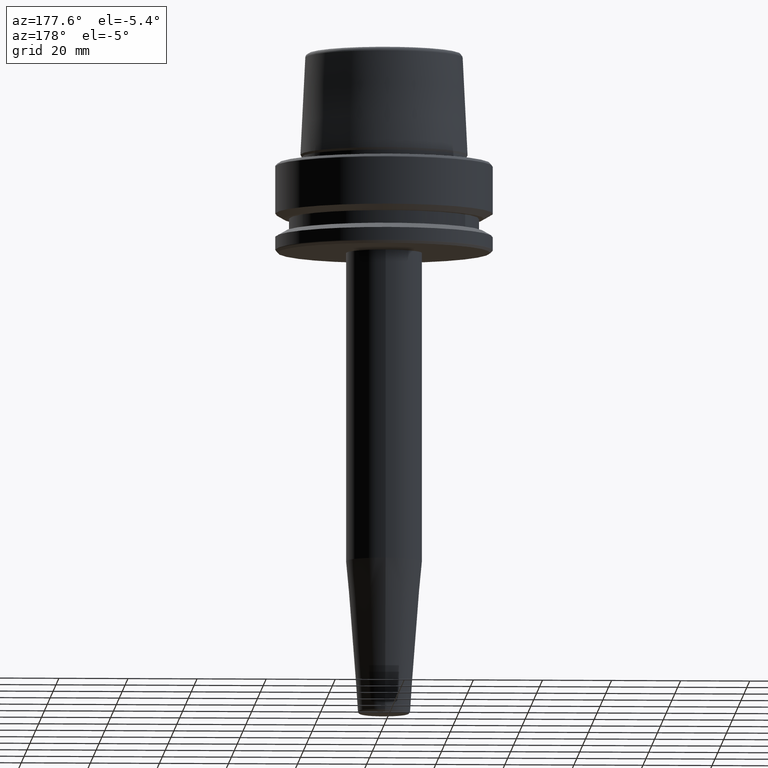
[diagram: clean part render]
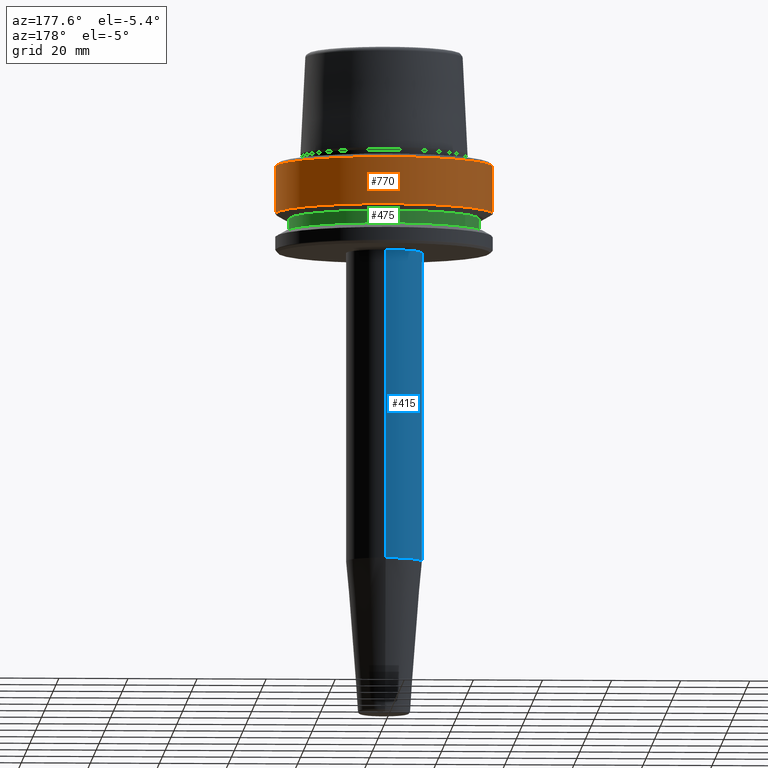
[diagram: same view with three faces highlighted in distinct colors, each labeled with its STEP entity id]
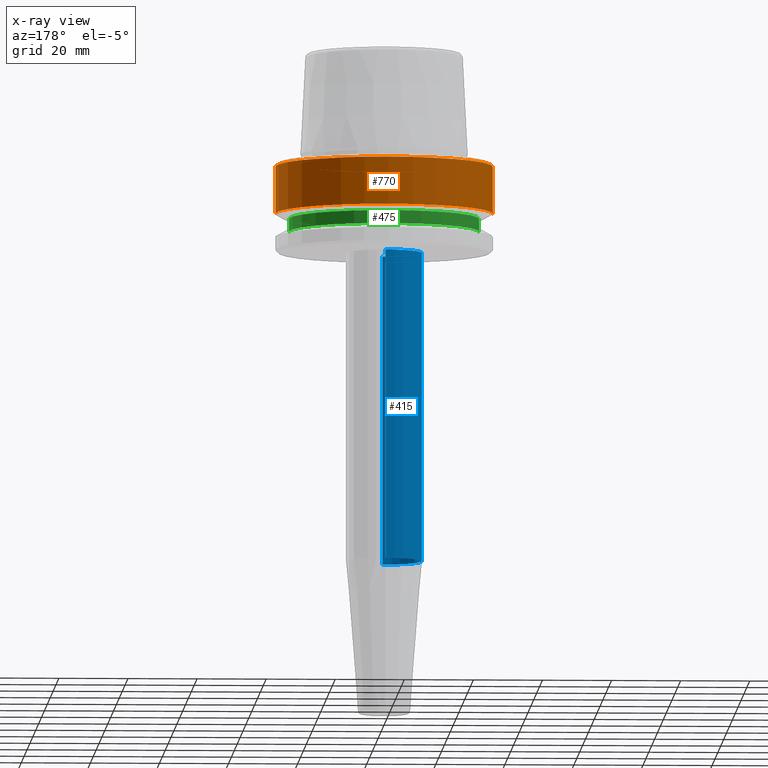
[diagram: x-ray of the same camera — body ghosted, the three highlighted faces saturated]
A machine part, auxiliary view with three faces highlighted in distinct colors.
The next image is the same camera in x-ray (body ghosted, the three faces saturated) — at least one of them is partly hidden behind the body in this view.
Their STEP definitions:

[orange] entity #770 — the highlighted cylindrical surface (partial cylindrical patch) has radius 31.5 mm, axis along (-0, -0, 1).
#29 = DIRECTION ( 'NONE',  ( -0.0000000000000000000, -0.0000000000000000000, 1.000000000000000000 ) ) ;
#105 = CYLINDRICAL_SURFACE ( 'NONE', #766, 31.50000000000000000 ) ;
#151 = LINE ( 'NONE', #495, #664 ) ;
#161 = EDGE_CURVE ( 'NONE', #803, #281, #1085, .T. ) ;
#205 = DIRECTION ( 'NONE',  ( 1.000000000000000000, 0.0000000000000000000, 0.0000000000000000000 ) ) ;
#276 = CARTESIAN_POINT ( 'NONE',  ( 0.0000000000000000000, 0.0000000000000000000, -14.62250092524070100 ) ) ;
#281 = VERTEX_POINT ( 'NONE', #966 ) ;
#288 = DIRECTION ( 'NONE',  ( 1.000000000000000000, 0.0000000000000000000, 0.0000000000000000000 ) ) ;
#310 = EDGE_CURVE ( 'NONE', #634, #1190, #151, .T. ) ;
#312 = CARTESIAN_POINT ( 'NONE',  ( 0.0000000000000000000, 0.0000000000000000000, 78.96908074195309300 ) ) ;
#330 = CARTESIAN_POINT ( 'NONE',  ( 31.50000000000000000, 0.0000000000000000000, 78.96908074195309300 ) ) ;
#369 = CARTESIAN_POINT ( 'NONE',  ( -31.50000000000000000, 3.857637417314162700E-015, -0.9656854249492363700 ) ) ;
#379 = DIRECTION ( 'NONE',  ( 1.000000000000000000, 0.0000000000000000000, 0.0000000000000000000 ) ) ;
#428 = VECTOR ( 'NONE', #953, 1000.000000000000000 ) ;
#468 = CARTESIAN_POINT ( 'NONE',  ( -31.50000000000000000, 3.857637417314162700E-015, -14.62250092524070100 ) ) ;
#483 = CIRCLE ( 'NONE', #1076, 31.50000000000000000 ) ;
#488 = EDGE_CURVE ( 'NONE', #281, #1190, #483, .T. ) ;
#495 = CARTESIAN_POINT ( 'NONE',  ( -31.50000000000000000, 3.857637417314162700E-015, 78.96908074195309300 ) ) ;
#508 = CARTESIAN_POINT ( 'NONE',  ( 31.50000000000000000, 0.0000000000000000000, -14.62250092524070100 ) ) ;
#519 = AXIS2_PLACEMENT_3D ( 'NONE', #276, #965, #379 ) ;
#569 = ORIENTED_EDGE ( 'NONE', *, *, #488, .F. ) ;
#578 = DIRECTION ( 'NONE',  ( -0.0000000000000000000, -0.0000000000000000000, 1.000000000000000000 ) ) ;
#606 = CIRCLE ( 'NONE', #519, 31.50000000000000000 ) ;
#634 = VERTEX_POINT ( 'NONE', #468 ) ;
#646 = DIRECTION ( 'NONE',  ( -0.0000000000000000000, -0.0000000000000000000, 1.000000000000000000 ) ) ;
#660 = ORIENTED_EDGE ( 'NONE', *, *, #1217, .T. ) ;
#664 = VECTOR ( 'NONE', #578, 1000.000000000000000 ) ;
#711 = ORIENTED_EDGE ( 'NONE', *, *, #161, .F. ) ;
#766 = AXIS2_PLACEMENT_3D ( 'NONE', #312, #29, #205 ) ;
#770 = ADVANCED_FACE ( 'NONE', ( #874 ), #105, .T. ) ;
#803 = VERTEX_POINT ( 'NONE', #508 ) ;
#851 = CARTESIAN_POINT ( 'NONE',  ( 0.0000000000000000000, 0.0000000000000000000, -0.9656854249492363700 ) ) ;
#874 = FACE_OUTER_BOUND ( 'NONE', #1126, .T. ) ;
#953 = DIRECTION ( 'NONE',  ( -0.0000000000000000000, -0.0000000000000000000, 1.000000000000000000 ) ) ;
#965 = DIRECTION ( 'NONE',  ( -0.0000000000000000000, -0.0000000000000000000, 1.000000000000000000 ) ) ;
#966 = CARTESIAN_POINT ( 'NONE',  ( 31.50000000000000000, 0.0000000000000000000, -0.9656854249492363700 ) ) ;
#992 = ORIENTED_EDGE ( 'NONE', *, *, #310, .T. ) ;
#1076 = AXIS2_PLACEMENT_3D ( 'NONE', #851, #646, #288 ) ;
#1085 = LINE ( 'NONE', #330, #428 ) ;
#1126 = EDGE_LOOP ( 'NONE', ( #660, #992, #569, #711 ) ) ;
#1190 = VERTEX_POINT ( 'NONE', #369 ) ;
#1217 = EDGE_CURVE ( 'NONE', #803, #634, #606, .T. ) ;

[blue] entity #415 — the highlighted cylindrical surface (partial cylindrical patch) has radius 11 mm, axis along (-0, 0, -1).
#61 = DIRECTION ( 'NONE',  ( 0.0000000000000000000, 1.000000000000000000, 0.0000000000000000000 ) ) ;
#79 = ORIENTED_EDGE ( 'NONE', *, *, #984, .F. ) ;
#125 = CIRCLE ( 'NONE', #547, 10.99999999999998900 ) ;
#136 = LINE ( 'NONE', #724, #1140 ) ;
#150 = CARTESIAN_POINT ( 'NONE',  ( 0.0000000000000000000, 4.898587196589414600E-015, -160.0000000000000000 ) ) ;
#222 = EDGE_LOOP ( 'NONE', ( #645, #681, #306, #79 ) ) ;
#237 = VERTEX_POINT ( 'NONE', #1044 ) ;
#249 = CARTESIAN_POINT ( 'NONE',  ( 0.0000000000000000000, 3.272851514256865500E-015, -115.5282834233845800 ) ) ;
#306 = ORIENTED_EDGE ( 'NONE', *, *, #1171, .T. ) ;
#342 = DIRECTION ( 'NONE',  ( 0.0000000000000000000, 0.0000000000000000000, -1.000000000000000000 ) ) ;
#345 = DIRECTION ( 'NONE',  ( 0.0000000000000000000, 1.000000000000000000, 0.0000000000000000000 ) ) ;
#386 = LINE ( 'NONE', #467, #871 ) ;
#406 = EDGE_CURVE ( 'NONE', #648, #1205, #125, .T. ) ;
#415 = ADVANCED_FACE ( 'NONE', ( #570 ), #541, .T. ) ;
#467 = CARTESIAN_POINT ( 'NONE',  ( 0.0000000000000000000, 10.99999999999999500, -160.0000000000000000 ) ) ;
#541 = CYLINDRICAL_SURFACE ( 'NONE', #810, 10.99999999999998900 ) ;
#547 = AXIS2_PLACEMENT_3D ( 'NONE', #960, #342, #728 ) ;
#550 = EDGE_CURVE ( 'NONE', #648, #237, #136, .T. ) ;
#570 = FACE_OUTER_BOUND ( 'NONE', #222, .T. ) ;
#605 = AXIS2_PLACEMENT_3D ( 'NONE', #249, #928, #345 ) ;
#645 = ORIENTED_EDGE ( 'NONE', *, *, #550, .F. ) ;
#648 = VERTEX_POINT ( 'NONE', #976 ) ;
#681 = ORIENTED_EDGE ( 'NONE', *, *, #406, .T. ) ;
#724 = CARTESIAN_POINT ( 'NONE',  ( 1.347111479062087000E-015, -10.99999999999998400, -160.0000000000000000 ) ) ;
#728 = DIRECTION ( 'NONE',  ( 1.000000000000000000, 0.0000000000000000000, 0.0000000000000000000 ) ) ;
#757 = CARTESIAN_POINT ( 'NONE',  ( 0.0000000000000000000, 10.99999999999998900, -25.99999999999999600 ) ) ;
#810 = AXIS2_PLACEMENT_3D ( 'NONE', #150, #1001, #61 ) ;
#858 = CARTESIAN_POINT ( 'NONE',  ( 1.347111479062086800E-015, 10.99999999999999100, -115.5282834233845800 ) ) ;
#871 = VECTOR ( 'NONE', #955, 1000.000000000000000 ) ;
#928 = DIRECTION ( 'NONE',  ( -0.0000000000000000000, 3.655662087007025400E-017, -1.000000000000000000 ) ) ;
#955 = DIRECTION ( 'NONE',  ( -0.0000000000000000000, 3.655662087007025400E-017, -1.000000000000000000 ) ) ;
#960 = CARTESIAN_POINT ( 'NONE',  ( 0.0000000000000000000, 0.0000000000000000000, -25.99999999999999600 ) ) ;
#976 = CARTESIAN_POINT ( 'NONE',  ( 1.347111479062087400E-015, -10.99999999999998900, -25.99999999999999600 ) ) ;
#984 = EDGE_CURVE ( 'NONE', #237, #1203, #1184, .T. ) ;
#1001 = DIRECTION ( 'NONE',  ( -0.0000000000000000000, 3.655662087007025400E-017, -1.000000000000000000 ) ) ;
#1028 = DIRECTION ( 'NONE',  ( -0.0000000000000000000, 3.655662087007025400E-017, -1.000000000000000000 ) ) ;
#1044 = CARTESIAN_POINT ( 'NONE',  ( 0.0000000000000000000, -10.99999999999998400, -115.5282834233845800 ) ) ;
#1140 = VECTOR ( 'NONE', #1028, 1000.000000000000000 ) ;
#1171 = EDGE_CURVE ( 'NONE', #1205, #1203, #386, .T. ) ;
#1184 = CIRCLE ( 'NONE', #605, 10.99999999999998800 ) ;
#1203 = VERTEX_POINT ( 'NONE', #858 ) ;
#1205 = VERTEX_POINT ( 'NONE', #757 ) ;

[green] entity #475 — the highlighted cylindrical surface (partial cylindrical patch) has radius 27.5 mm, axis along (-0, -0, 1).
#30 = LINE ( 'NONE', #86, #129 ) ;
#69 = FACE_OUTER_BOUND ( 'NONE', #777, .T. ) ;
#86 = CARTESIAN_POINT ( 'NONE',  ( -27.49999999999999600, 3.367778697655220900E-015, 78.96908074195309300 ) ) ;
#129 = VECTOR ( 'NONE', #653, 1000.000000000000000 ) ;
#134 = CARTESIAN_POINT ( 'NONE',  ( 27.49999999999999600, 0.0000000000000000000, -19.90000000000001600 ) ) ;
#181 = CIRCLE ( 'NONE', #448, 27.49999999999999600 ) ;
#198 = EDGE_CURVE ( 'NONE', #209, #1063, #181, .T. ) ;
#201 = VECTOR ( 'NONE', #921, 1000.000000000000000 ) ;
#209 = VERTEX_POINT ( 'NONE', #134 ) ;
#210 = ORIENTED_EDGE ( 'NONE', *, *, #231, .F. ) ;
#231 = EDGE_CURVE ( 'NONE', #567, #638, #315, .T. ) ;
#277 = DIRECTION ( 'NONE',  ( 1.000000000000000000, 0.0000000000000000000, 0.0000000000000000000 ) ) ;
#280 = DIRECTION ( 'NONE',  ( -0.0000000000000000000, -0.0000000000000000000, 1.000000000000000000 ) ) ;
#315 = CIRCLE ( 'NONE', #571, 27.49999999999999600 ) ;
#329 = ORIENTED_EDGE ( 'NONE', *, *, #1152, .T. ) ;
#354 = CARTESIAN_POINT ( 'NONE',  ( -27.49999999999999600, 3.367778697655220900E-015, -19.90000000000001600 ) ) ;
#357 = DIRECTION ( 'NONE',  ( 1.000000000000000000, 0.0000000000000000000, 0.0000000000000000000 ) ) ;
#370 = CARTESIAN_POINT ( 'NONE',  ( 27.49999999999999600, 0.0000000000000000000, -16.10000000000001600 ) ) ;
#429 = CARTESIAN_POINT ( 'NONE',  ( 0.0000000000000000000, 0.0000000000000000000, 78.96908074195309300 ) ) ;
#448 = AXIS2_PLACEMENT_3D ( 'NONE', #694, #280, #1060 ) ;
#475 = ADVANCED_FACE ( 'NONE', ( #69 ), #742, .T. ) ;
#490 = LINE ( 'NONE', #1215, #201 ) ;
#497 = CARTESIAN_POINT ( 'NONE',  ( -27.49999999999999600, 3.367778697655220900E-015, -16.10000000000001600 ) ) ;
#567 = VERTEX_POINT ( 'NONE', #370 ) ;
#571 = AXIS2_PLACEMENT_3D ( 'NONE', #675, #1037, #357 ) ;
#638 = VERTEX_POINT ( 'NONE', #497 ) ;
#653 = DIRECTION ( 'NONE',  ( -0.0000000000000000000, -0.0000000000000000000, 1.000000000000000000 ) ) ;
#675 = CARTESIAN_POINT ( 'NONE',  ( 0.0000000000000000000, 0.0000000000000000000, -16.10000000000001600 ) ) ;
#694 = CARTESIAN_POINT ( 'NONE',  ( 0.0000000000000000000, 0.0000000000000000000, -19.90000000000001600 ) ) ;
#703 = ORIENTED_EDGE ( 'NONE', *, *, #952, .F. ) ;
#742 = CYLINDRICAL_SURFACE ( 'NONE', #1208, 27.49999999999999600 ) ;
#777 = EDGE_LOOP ( 'NONE', ( #1256, #329, #210, #703 ) ) ;
#921 = DIRECTION ( 'NONE',  ( -0.0000000000000000000, -0.0000000000000000000, 1.000000000000000000 ) ) ;
#952 = EDGE_CURVE ( 'NONE', #209, #567, #490, .T. ) ;
#1037 = DIRECTION ( 'NONE',  ( -0.0000000000000000000, -0.0000000000000000000, 1.000000000000000000 ) ) ;
#1060 = DIRECTION ( 'NONE',  ( 1.000000000000000000, 0.0000000000000000000, 0.0000000000000000000 ) ) ;
#1063 = VERTEX_POINT ( 'NONE', #354 ) ;
#1070 = DIRECTION ( 'NONE',  ( -0.0000000000000000000, -0.0000000000000000000, 1.000000000000000000 ) ) ;
#1152 = EDGE_CURVE ( 'NONE', #1063, #638, #30, .T. ) ;
#1208 = AXIS2_PLACEMENT_3D ( 'NONE', #429, #1070, #277 ) ;
#1215 = CARTESIAN_POINT ( 'NONE',  ( 27.49999999999999600, 0.0000000000000000000, 78.96908074195309300 ) ) ;
#1256 = ORIENTED_EDGE ( 'NONE', *, *, #198, .T. ) ;